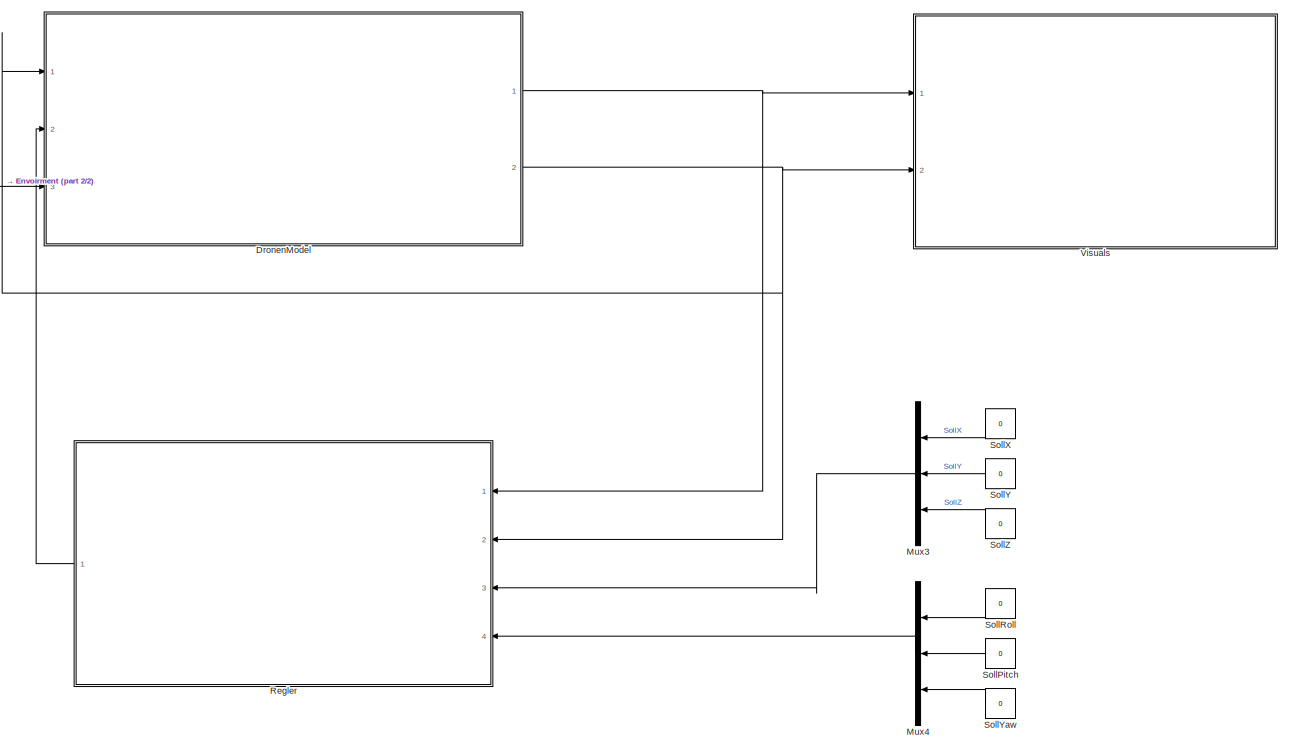
[diagram: root canvas - part 1/2, most of the canvas]
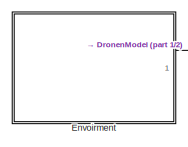
[diagram: root canvas - part 2/2, top left region]
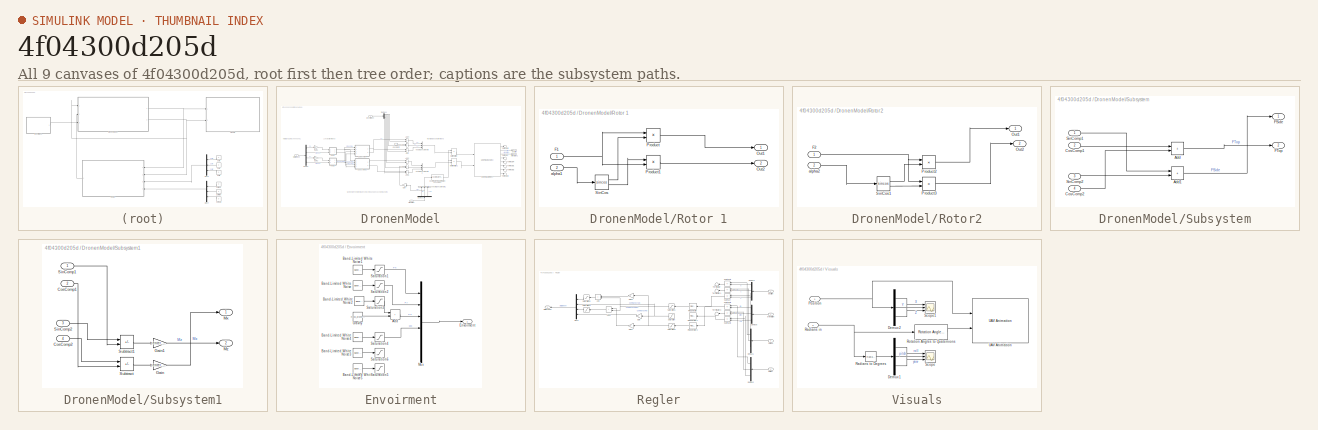
[diagram: thumbnail index - all 9 canvases of the model, root first then tree order]
MODEL slx_4f04300d205d
KIND model
CONFIG AbsTol = auto
CONFIG EnableMultiTasking = off
CONFIG FixedStep = auto
CONFIG MaxStep = auto
CONFIG MinStep = auto
CONFIG RelTol = 1e-3
CONFIG SampleTimeConstraint = Unconstrained
CONFIG SolverName = VariableStepAuto
CONFIG StartTime = 0.0
CONFIG StopTime = 60
WORKSPACE source: mxarray member
WORKSPACE center_rotor_distance = 0.1
WORKSPACE mass_drone = 0.661
WORKSPACE moment_inertia_drone = [0.0019 0 0.0001 0 0.004 0 0.0001 0 0.0021]
WORKSPACE thrust_per_motor = 8.6328
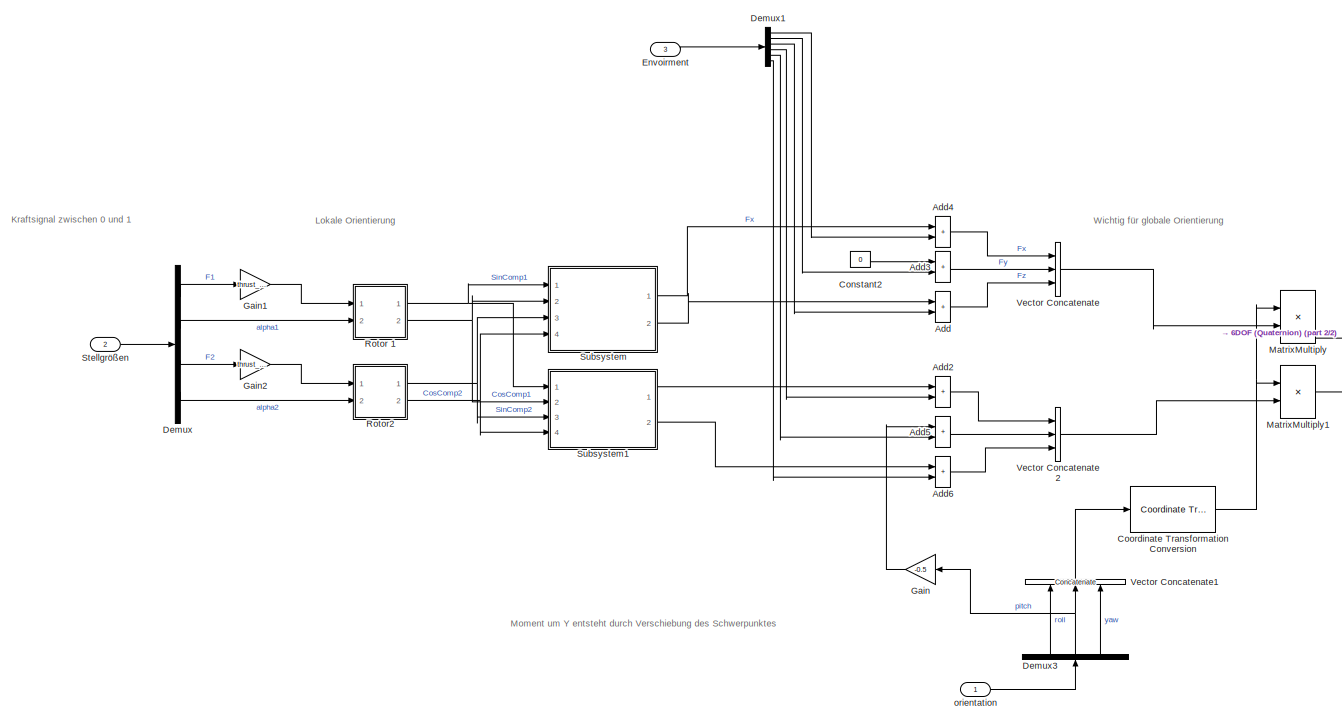
[diagram: DronenModel - part 1/2, most of the canvas]
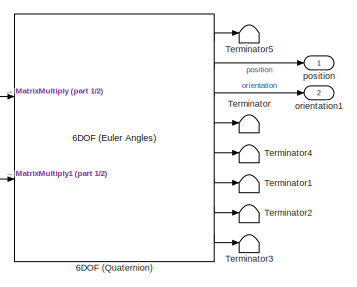
[diagram: DronenModel - part 2/2, middle right region]
BLOCK [SubSystem] DronenModel
  Ports = [3, 2]
  RequestExecContextInheritance = off
BLOCK [Reference] DronenModel/6DOF (Quaternion)  REF=shared6dof/6DOF (Euler Angles)
  Ports = [2, 8]
  SourceBlock = shared6dof/6DOF (Euler Angles)
  SourceProductBaseCode = AE,PW,MT,UV,VE,VP
  SourceType = 6DOF EoM (Body Axis)
BLOCK [Sum] DronenModel/Add
  IconShape = rectangular
  Ports = [2, 1]
BLOCK [Sum] DronenModel/Add2
  IconShape = rectangular
  Ports = [2, 1]
BLOCK [Sum] DronenModel/Add3
  IconShape = rectangular
  Ports = [2, 1]
BLOCK [Sum] DronenModel/Add4
  IconShape = rectangular
  Ports = [2, 1]
BLOCK [Sum] DronenModel/Add5
  IconShape = rectangular
  Ports = [2, 1]
BLOCK [Sum] DronenModel/Add6
  IconShape = rectangular
  Ports = [2, 1]
BLOCK [Constant] DronenModel/Constant2
  Value = 0
BLOCK [Reference] DronenModel/Coordinate Transformation Conversion  REF=robotcorelib/Coordinate Transformation Conversion
  Ports = [1, 1]
  SourceBlock = robotcorelib/Coordinate Transformation Conversion
  SourceProductBaseCode = NV,RO,RR,UV
  SourceType = robotics.slcore.internal.block.CoordinateTransformationConversion
BLOCK [Demux] DronenModel/Demux
  Ports = [1, 4]
BLOCK [Demux] DronenModel/Demux1
  Outputs = 6
  Ports = [1, 6]
BLOCK [Demux] DronenModel/Demux3
  NameLocation = right
  Outputs = 3
  Ports = [1, 3]
BLOCK [Inport] DronenModel/Envoirment
  Port = 3
BLOCK [Gain] DronenModel/Gain
  Gain = -0.5
BLOCK [Gain] DronenModel/Gain1
  Gain = thrust_per_motor
BLOCK [Gain] DronenModel/Gain2
  Gain = thrust_per_motor
BLOCK [Product] DronenModel/MatrixMultiply
  Multiplication = Matrix(*)
  Ports = [2, 1]
BLOCK [Product] DronenModel/MatrixMultiply1
  Multiplication = Matrix(*)
  Ports = [2, 1]
BLOCK [SubSystem] DronenModel/Rotor 1
  Ports = [2, 2]
  RequestExecContextInheritance = off
BLOCK [Inport] DronenModel/Rotor 1/F1
BLOCK [Outport] DronenModel/Rotor 1/Out1
BLOCK [Outport] DronenModel/Rotor 1/Out2
  Port = 2
BLOCK [Product] DronenModel/Rotor 1/Product
  Ports = [2, 1]
BLOCK [Product] DronenModel/Rotor 1/Product1
  Ports = [2, 1]
BLOCK [Trigonometry] DronenModel/Rotor 1/SinCos
  Operator = sincos
  Ports = [1, 2]
BLOCK [Inport] DronenModel/Rotor 1/alpha1
  Port = 2
BLOCK [SubSystem] DronenModel/Rotor2
  Ports = [2, 2]
  RequestExecContextInheritance = off
BLOCK [Inport] DronenModel/Rotor2/F2
BLOCK [Outport] DronenModel/Rotor2/Out1
BLOCK [Outport] DronenModel/Rotor2/Out2
  Port = 2
BLOCK [Product] DronenModel/Rotor2/Product2
  Ports = [2, 1]
BLOCK [Product] DronenModel/Rotor2/Product3
  Ports = [2, 1]
BLOCK [Trigonometry] DronenModel/Rotor2/SinCos1
  Operator = sincos
  Ports = [1, 2]
BLOCK [Inport] DronenModel/Rotor2/alpha2
  Port = 2
BLOCK [Inport] DronenModel/Stellgrößen
  Port = 2
BLOCK [SubSystem] DronenModel/Subsystem
  Ports = [4, 2]
  RequestExecContextInheritance = off
BLOCK [Sum] DronenModel/Subsystem/Add
  IconShape = rectangular
  Ports = [2, 1]
BLOCK [Sum] DronenModel/Subsystem/Add1
  IconShape = rectangular
  Ports = [2, 1]
BLOCK [Inport] DronenModel/Subsystem/CosComp1
  Port = 2
BLOCK [Inport] DronenModel/Subsystem/CosComp2
  Port = 4
BLOCK [Outport] DronenModel/Subsystem/FSide
BLOCK [Outport] DronenModel/Subsystem/FTop
  Port = 2
BLOCK [Inport] DronenModel/Subsystem/SinComp1
BLOCK [Inport] DronenModel/Subsystem/SinComp2
  Port = 3
BLOCK [SubSystem] DronenModel/Subsystem1
  Ports = [4, 2]
  RequestExecContextInheritance = off
BLOCK [Inport] DronenModel/Subsystem1/CosComp1
  Port = 2
BLOCK [Inport] DronenModel/Subsystem1/CosComp2
  Port = 4
BLOCK [Gain] DronenModel/Subsystem1/Gain
  Gain = center_rotor_distance
BLOCK [Gain] DronenModel/Subsystem1/Gain1
  Gain = center_rotor_distance
BLOCK [Outport] DronenModel/Subsystem1/Mx
BLOCK [Outport] DronenModel/Subsystem1/Mz
  Port = 2
BLOCK [Inport] DronenModel/Subsystem1/SinComp1
BLOCK [Inport] DronenModel/Subsystem1/SinComp2
  Port = 3
BLOCK [Sum] DronenModel/Subsystem1/Subtract
  IconShape = rectangular
  Inputs = +-
  Ports = [2, 1]
BLOCK [Sum] DronenModel/Subsystem1/Subtract1
  IconShape = rectangular
  Inputs = +-
  Ports = [2, 1]
BLOCK [Terminator] DronenModel/Terminator
BLOCK [Terminator] DronenModel/Terminator1
BLOCK [Terminator] DronenModel/Terminator2
BLOCK [Terminator] DronenModel/Terminator3
BLOCK [Terminator] DronenModel/Terminator4
BLOCK [Terminator] DronenModel/Terminator5
BLOCK [Concatenate] DronenModel/Vector Concatenate
  NumInputs = 3
  Ports = [3, 1]
BLOCK [Concatenate] DronenModel/Vector Concatenate1
  NameLocation = right
  NumInputs = 3
  Ports = [3, 1]
BLOCK [Concatenate] DronenModel/Vector Concatenate2
  NumInputs = 3
  Ports = [3, 1]
BLOCK [Inport] DronenModel/orientation
BLOCK [Outport] DronenModel/orientation1
  Port = 2
BLOCK [Outport] DronenModel/position
BLOCK [SubSystem] Envoirment
  Ports = [0, 1]
  RequestExecContextInheritance = off
BLOCK [Sum] Envoirment/Add
  IconShape = rectangular
  Ports = [2, 1]
BLOCK [Reference] Envoirment/Band-Limited White Noise  REF=simulink/Sources/Band-Limited
White Noise
  Ports = [0, 1]
  SourceBlock = simulink/Sources/Band-Limited\nWhite Noise
  SourceProductBaseCode = SL
  SourceType = Band-Limited White Noise.
BLOCK [Reference] Envoirment/Band-Limited White Noise1  REF=simulink/Sources/Band-Limited
White Noise
  Ports = [0, 1]
  SourceBlock = simulink/Sources/Band-Limited\nWhite Noise
  SourceProductBaseCode = SL
  SourceType = Band-Limited White Noise.
BLOCK [Reference] Envoirment/Band-Limited White Noise2  REF=simulink/Sources/Band-Limited
White Noise
  Ports = [0, 1]
  SourceBlock = simulink/Sources/Band-Limited\nWhite Noise
  SourceProductBaseCode = SL
  SourceType = Band-Limited White Noise.
BLOCK [Reference] Envoirment/Band-Limited White Noise3  REF=simulink/Sources/Band-Limited
White Noise
  Ports = [0, 1]
  SourceBlock = simulink/Sources/Band-Limited\nWhite Noise
  SourceProductBaseCode = SL
  SourceType = Band-Limited White Noise.
BLOCK [Reference] Envoirment/Band-Limited White Noise4  REF=simulink/Sources/Band-Limited
White Noise
  Ports = [0, 1]
  SourceBlock = simulink/Sources/Band-Limited\nWhite Noise
  SourceProductBaseCode = SL
  SourceType = Band-Limited White Noise.
BLOCK [Reference] Envoirment/Band-Limited White Noise5  REF=simulink/Sources/Band-Limited
White Noise
  Ports = [0, 1]
  SourceBlock = simulink/Sources/Band-Limited\nWhite Noise
  SourceProductBaseCode = SL
  SourceType = Band-Limited White Noise.
BLOCK [Outport] Envoirment/Envoirment
BLOCK [Constant] Envoirment/Gravity
  Value = mass_drone*-9.81
BLOCK [Mux] Envoirment/Mux
  DisplayOption = bar
  Inputs = 6
  Ports = [6, 1]
BLOCK [Saturate] Envoirment/Saturation1
  LowerLimit = -.1
  UpperLimit = 0.1
BLOCK [Saturate] Envoirment/Saturation2
  LowerLimit = -.1
  UpperLimit = 0.1
BLOCK [Saturate] Envoirment/Saturation3
  LowerLimit = -.1
  UpperLimit = 0.1
BLOCK [Saturate] Envoirment/Saturation4
  LowerLimit = -.0001
  UpperLimit = 0.001
BLOCK [Saturate] Envoirment/Saturation5
  LowerLimit = -.1
  UpperLimit = 0.1
BLOCK [Saturate] Envoirment/Saturation6
  LowerLimit = -.1
  UpperLimit = 0.1
BLOCK [Mux] Mux3
  DisplayOption = bar
  Inputs = 3
  Ports = [3, 1]
BLOCK [Mux] Mux4
  DisplayOption = bar
  Inputs = 3
  Ports = [3, 1]
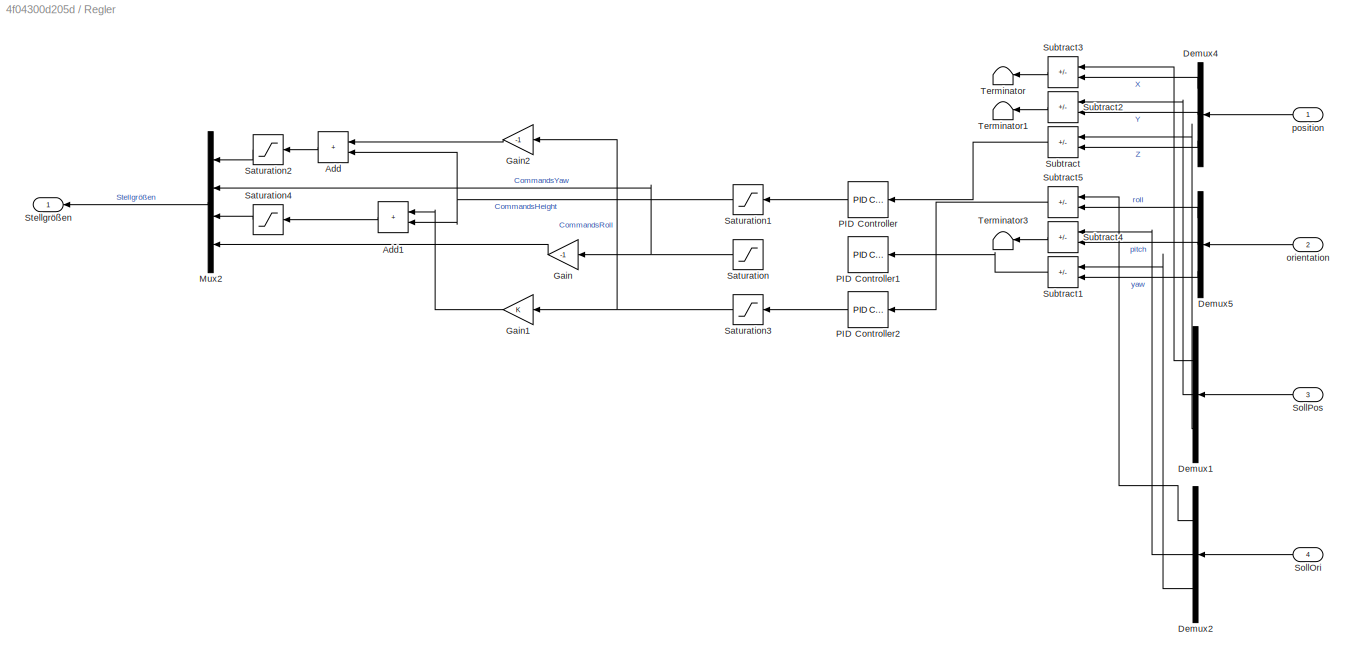
BLOCK [SubSystem] Regler
  Ports = [4, 1]
  RequestExecContextInheritance = off
BLOCK [Sum] Regler/Add
  IconShape = rectangular
  Ports = [2, 1]
BLOCK [Sum] Regler/Add1
  IconShape = rectangular
  Ports = [2, 1]
BLOCK [Demux] Regler/Demux1
  Outputs = 3
  Ports = [1, 3]
BLOCK [Demux] Regler/Demux2
  Outputs = 3
  Ports = [1, 3]
BLOCK [Demux] Regler/Demux4
  Outputs = 3
  Ports = [1, 3]
BLOCK [Demux] Regler/Demux5
  Outputs = 3
  Ports = [1, 3]
BLOCK [Gain] Regler/Gain
  Gain = -1
BLOCK [Gain] Regler/Gain1
BLOCK [Gain] Regler/Gain2
  Gain = -1
BLOCK [Mux] Regler/Mux2
  DisplayOption = bar
  Ports = [4, 1]
BLOCK [Reference] Regler/PID Controller  REF=pid_lib/PID Controller
  Ports = [1, 1]
  SourceBlock = pid_lib/PID Controller
  SourceProductBaseCode = SL
  SourceType = PID 1dof
BLOCK [Reference] Regler/PID Controller1  REF=pid_lib/PID Controller
  Ports = [1, 1]
  SourceBlock = pid_lib/PID Controller
  SourceProductBaseCode = SL
  SourceType = PID 1dof
BLOCK [Reference] Regler/PID Controller2  REF=pid_lib/PID Controller
  Ports = [1, 1]
  SourceBlock = pid_lib/PID Controller
  SourceProductBaseCode = SL
  SourceType = PID 1dof
BLOCK [Saturate] Regler/Saturation
  LowerLimit = -1
  UpperLimit = 1
BLOCK [Saturate] Regler/Saturation1
  LowerLimit = 0
  UpperLimit = 1
BLOCK [Saturate] Regler/Saturation2
  LowerLimit = 0
  UpperLimit = 1
BLOCK [Saturate] Regler/Saturation3
  LowerLimit = 0
BLOCK [Saturate] Regler/Saturation4
  LowerLimit = 0
  UpperLimit = 1
BLOCK [Inport] Regler/SollOri
  Port = 4
BLOCK [Inport] Regler/SollPos
  Port = 3
BLOCK [Outport] Regler/Stellgrößen
BLOCK [Sum] Regler/Subtract
  IconShape = rectangular
  Inputs = +-
  Ports = [2, 1]
BLOCK [Sum] Regler/Subtract1
  IconShape = rectangular
  Inputs = +-
  Ports = [2, 1]
BLOCK [Sum] Regler/Subtract2
  IconShape = rectangular
  Inputs = +-
  Ports = [2, 1]
BLOCK [Sum] Regler/Subtract3
  IconShape = rectangular
  Inputs = +-
  Ports = [2, 1]
BLOCK [Sum] Regler/Subtract4
  IconShape = rectangular
  Inputs = +-
  Ports = [2, 1]
BLOCK [Sum] Regler/Subtract5
  IconShape = rectangular
  Inputs = +-
  Ports = [2, 1]
BLOCK [Terminator] Regler/Terminator
BLOCK [Terminator] Regler/Terminator1
BLOCK [Terminator] Regler/Terminator3
BLOCK [Inport] Regler/orientation
  Port = 2
BLOCK [Inport] Regler/position
BLOCK [Constant] SollPitch
  Value = 0
BLOCK [Constant] SollRoll
  Value = 0
BLOCK [Constant] SollX
  Value = 0
BLOCK [Constant] SollY
  Value = 0
BLOCK [Constant] SollYaw
  Value = 0
BLOCK [Constant] SollZ
  Value = 0
BLOCK [SubSystem] Visuals
  Ports = [2]
  RequestExecContextInheritance = off
BLOCK [Demux] Visuals/Demux1
  Outputs = 3
  Ports = [1, 3]
BLOCK [Demux] Visuals/Demux2
  Outputs = 3
  Ports = [1, 3]
BLOCK [Inport] Visuals/Position
BLOCK [Inport] Visuals/Radians in
  Port = 2
BLOCK [Reference] Visuals/Radians to Degrees  REF=simulink_extras/Transformations/Radians
to Degrees
  Ports = [1, 1]
  SourceBlock = simulink_extras/Transformations/Radians\nto Degrees
  SourceProductBaseCode = SL
  SourceType = RadiansToDegrees
BLOCK [Reference] Visuals/Rotation Angles to Quaternions  REF=sharedtransform/Rotation Angles to Quaternions
  AttributesFormatString = Rotation Order: %<rotationOrder>
  Ports = [1, 1]
  SourceBlock = sharedtransform/Rotation Angles to Quaternions
  SourceProductBaseCode = AE,PW,MT,UV,VE,VP
  SourceType = Ang2Quat
BLOCK [Scope] Visuals/Scope
  Floating = off
  NumInputPorts = 3
  Ports = [3]
  ScopeSpecificationString = Simulink.scopes.TimeScopeBlockCfg('CurrentConfiguration', extmgr.ConfigurationSet(extmgr.Configuration('Core','General UI',true),extmgr.Configuration('Core','Source UI',true),extmgr.Configuration('Sources','WiredSimulink',true),extmgr.Configuration('Visuals','Time Domain',true,'SerializedDisplays',{struct('MinYLimReal','-225.00000','MaxYLimReal','225.00000','YLabelReal','','MinYLimMag',' 0.00000',...<+1398ch>
BLOCK [Scope] Visuals/Scope1
  Floating = off
  NumInputPorts = 3
  Ports = [3]
  ScopeSpecificationString = Simulink.scopes.TimeScopeBlockCfg('CurrentConfiguration', extmgr.ConfigurationSet(extmgr.Configuration('Core','General UI',true),extmgr.Configuration('Core','Source UI',true),extmgr.Configuration('Sources','WiredSimulink',true,'DataLoggingVariableName','ScopeData1'),extmgr.Configuration('Visuals','Time Domain',true,'SerializedDisplays',{struct('MinYLimReal','-78.13499','MaxYLimReal','11.77607','YL...<+1428ch>
BLOCK [Reference] Visuals/UAV Animation  REF=uavutilslib/UAV Animation
  Ports = [2]
  SourceBlock = uavutilslib/UAV Animation
  SourceProductBaseCode = UV
  SourceType = uav.sluav.internal.system.UAVAnimation
ANNOTATION DronenModel: Moment um Y entsteht durch Verschiebung des Schwerpunktes
ANNOTATION DronenModel: Kraftsignal zwischen 0 und 1
ANNOTATION DronenModel: Lokale Orientierung
ANNOTATION DronenModel: Wichtig für globale Orientierung
LINE DronenModel/6DOF (Quaternion):1 -> DronenModel/Terminator5:1
LINE DronenModel/6DOF (Quaternion):2 -> DronenModel/position:1
LINE DronenModel/6DOF (Quaternion):3 -> DronenModel/orientation1:1
LINE DronenModel/6DOF (Quaternion):4 -> DronenModel/Terminator:1
LINE DronenModel/6DOF (Quaternion):5 -> DronenModel/Terminator4:1
LINE DronenModel/6DOF (Quaternion):6 -> DronenModel/Terminator1:1
LINE DronenModel/6DOF (Quaternion):7 -> DronenModel/Terminator2:1
LINE DronenModel/6DOF (Quaternion):8 -> DronenModel/Terminator3:1
LINE DronenModel/Add2:1 -> DronenModel/Vector Concatenate2:1
LINE DronenModel/Add3:1 -> DronenModel/Vector Concatenate:2
LINE DronenModel/Add4:1 -> DronenModel/Vector Concatenate:1
LINE DronenModel/Add5:1 -> DronenModel/Vector Concatenate2:2
LINE DronenModel/Add6:1 -> DronenModel/Vector Concatenate2:3
LINE DronenModel/Add:1 -> DronenModel/Vector Concatenate:3
LINE DronenModel/Constant2:1 -> DronenModel/Add3:1
NET DronenModel/Coordinate Transformation Conversion:1 -> DronenModel/MatrixMultiply1:1, DronenModel/MatrixMultiply:1
LINE DronenModel/Demux1:1 -> DronenModel/Add4:2
LINE DronenModel/Demux1:2 -> DronenModel/Add3:2
LINE DronenModel/Demux1:3 -> DronenModel/Add:2
LINE DronenModel/Demux1:4 -> DronenModel/Add2:2
LINE DronenModel/Demux1:5 -> DronenModel/Add5:2
LINE DronenModel/Demux1:6 -> DronenModel/Add6:2
LINE DronenModel/Demux3:1 -> DronenModel/Vector Concatenate1:1
NET DronenModel/Demux3:2 -> DronenModel/Gain:1, DronenModel/Vector Concatenate1:2
LINE DronenModel/Demux3:3 -> DronenModel/Vector Concatenate1:3
LINE DronenModel/Demux:1 -> DronenModel/Gain1:1
LINE DronenModel/Demux:2 -> DronenModel/Rotor 1:2
LINE DronenModel/Demux:3 -> DronenModel/Gain2:1
LINE DronenModel/Demux:4 -> DronenModel/Rotor2:2
LINE DronenModel/Envoirment:1 -> DronenModel/Demux1:1
LINE DronenModel/Gain1:1 -> DronenModel/Rotor 1:1
LINE DronenModel/Gain2:1 -> DronenModel/Rotor2:1
LINE DronenModel/Gain:1 -> DronenModel/Add5:1
LINE DronenModel/MatrixMultiply1:1 -> DronenModel/6DOF (Quaternion):2
LINE DronenModel/MatrixMultiply:1 -> DronenModel/6DOF (Quaternion):1
NET DronenModel/Rotor 1/F1:1 -> DronenModel/Rotor 1/Product1:2, DronenModel/Rotor 1/Product:1
LINE DronenModel/Rotor 1/Product1:1 -> DronenModel/Rotor 1/Out2:1
LINE DronenModel/Rotor 1/Product:1 -> DronenModel/Rotor 1/Out1:1
LINE DronenModel/Rotor 1/SinCos:1 -> DronenModel/Rotor 1/Product:2
LINE DronenModel/Rotor 1/SinCos:2 -> DronenModel/Rotor 1/Product1:1
LINE DronenModel/Rotor 1/alpha1:1 -> DronenModel/Rotor 1/SinCos:1
NET DronenModel/Rotor 1:1 -> DronenModel/Subsystem1:1, DronenModel/Subsystem:1
NET DronenModel/Rotor 1:2 -> DronenModel/Subsystem1:2, DronenModel/Subsystem:2
NET DronenModel/Rotor2/F2:1 -> DronenModel/Rotor2/Product2:1, DronenModel/Rotor2/Product3:1
LINE DronenModel/Rotor2/Product2:1 -> DronenModel/Rotor2/Out1:1
LINE DronenModel/Rotor2/Product3:1 -> DronenModel/Rotor2/Out2:1
LINE DronenModel/Rotor2/SinCos1:1 -> DronenModel/Rotor2/Product2:2
LINE DronenModel/Rotor2/SinCos1:2 -> DronenModel/Rotor2/Product3:2
LINE DronenModel/Rotor2/alpha2:1 -> DronenModel/Rotor2/SinCos1:1
NET DronenModel/Rotor2:1 -> DronenModel/Subsystem1:3, DronenModel/Subsystem:3
NET DronenModel/Rotor2:2 -> DronenModel/Subsystem1:4, DronenModel/Subsystem:4
LINE DronenModel/Stellgrößen:1 -> DronenModel/Demux:1
LINE DronenModel/Subsystem/Add1:1 -> DronenModel/Subsystem/FSide:1
LINE DronenModel/Subsystem/Add:1 -> DronenModel/Subsystem/FTop:1
LINE DronenModel/Subsystem/CosComp1:1 -> DronenModel/Subsystem/Add:1
LINE DronenModel/Subsystem/CosComp2:1 -> DronenModel/Subsystem/Add:2
LINE DronenModel/Subsystem/SinComp1:1 -> DronenModel/Subsystem/Add1:1
LINE DronenModel/Subsystem/SinComp2:1 -> DronenModel/Subsystem/Add1:2
LINE DronenModel/Subsystem1/CosComp1:1 -> DronenModel/Subsystem1/Subtract:2
LINE DronenModel/Subsystem1/CosComp2:1 -> DronenModel/Subsystem1/Subtract:1
LINE DronenModel/Subsystem1/Gain1:1 -> DronenModel/Subsystem1/Mz:1
LINE DronenModel/Subsystem1/Gain:1 -> DronenModel/Subsystem1/Mx:1
LINE DronenModel/Subsystem1/SinComp1:1 -> DronenModel/Subsystem1/Subtract1:2
LINE DronenModel/Subsystem1/SinComp2:1 -> DronenModel/Subsystem1/Subtract1:1
LINE DronenModel/Subsystem1/Subtract1:1 -> DronenModel/Subsystem1/Gain1:1
LINE DronenModel/Subsystem1/Subtract:1 -> DronenModel/Subsystem1/Gain:1
LINE DronenModel/Subsystem1:1 -> DronenModel/Add2:1
LINE DronenModel/Subsystem1:2 -> DronenModel/Add6:1
LINE DronenModel/Subsystem:1 -> DronenModel/Add4:1
LINE DronenModel/Subsystem:2 -> DronenModel/Add:1
LINE DronenModel/Vector Concatenate1:1 -> DronenModel/Coordinate Transformation Conversion:1
LINE DronenModel/Vector Concatenate2:1 -> DronenModel/MatrixMultiply1:2
LINE DronenModel/Vector Concatenate:1 -> DronenModel/MatrixMultiply:2
LINE DronenModel/orientation:1 -> DronenModel/Demux3:1
NET DronenModel:1 -> Regler:1, Visuals:1
NET DronenModel:2 -> DronenModel:1, Regler:2, Visuals:2
LINE Envoirment/Add:1 -> Envoirment/Mux:3
LINE Envoirment/Band-Limited White Noise1:1 -> Envoirment/Saturation1:1
LINE Envoirment/Band-Limited White Noise2:1 -> Envoirment/Saturation3:1
LINE Envoirment/Band-Limited White Noise3:1 -> Envoirment/Saturation6:1
LINE Envoirment/Band-Limited White Noise4:1 -> Envoirment/Saturation4:1
LINE Envoirment/Band-Limited White Noise5:1 -> Envoirment/Saturation5:1
LINE Envoirment/Band-Limited White Noise:1 -> Envoirment/Saturation2:1
LINE Envoirment/Gravity:1 -> Envoirment/Add:2
LINE Envoirment/Mux:1 -> Envoirment/Envoirment:1
LINE Envoirment/Saturation1:1 -> Envoirment/Mux:1
LINE Envoirment/Saturation2:1 -> Envoirment/Mux:2
LINE Envoirment/Saturation3:1 -> Envoirment/Add:1
LINE Envoirment/Saturation4:1 -> Envoirment/Mux:4
LINE Envoirment:1 -> DronenModel:3
LINE Mux3:1 -> Regler:3
LINE Mux4:1 -> Regler:4
LINE Regler/Add1:1 -> Regler/Saturation4:1
LINE Regler/Add:1 -> Regler/Saturation2:1
LINE Regler/Demux1:1 -> Regler/Subtract3:1
LINE Regler/Demux1:2 -> Regler/Subtract2:1
LINE Regler/Demux1:3 -> Regler/Subtract:1
LINE Regler/Demux2:1 -> Regler/Subtract5:1
LINE Regler/Demux2:2 -> Regler/Subtract4:1
LINE Regler/Demux2:3 -> Regler/Subtract1:1
LINE Regler/Demux4:1 -> Regler/Subtract3:2
LINE Regler/Demux4:2 -> Regler/Subtract2:2
LINE Regler/Demux4:3 -> Regler/Subtract:2
LINE Regler/Demux5:1 -> Regler/Subtract5:2
LINE Regler/Demux5:2 -> Regler/Subtract4:2
LINE Regler/Demux5:3 -> Regler/Subtract1:2
LINE Regler/Gain1:1 -> Regler/Add1:1
LINE Regler/Gain2:1 -> Regler/Add:1
LINE Regler/Gain:1 -> Regler/Mux2:4
LINE Regler/Mux2:1 -> Regler/Stellgrößen:1
LINE Regler/PID Controller2:1 -> Regler/Saturation3:1
LINE Regler/PID Controller:1 -> Regler/Saturation1:1
NET Regler/Saturation1:1 -> Regler/Add1:2, Regler/Add:2
LINE Regler/Saturation2:1 -> Regler/Mux2:1
NET Regler/Saturation3:1 -> Regler/Gain1:1, Regler/Gain2:1
LINE Regler/Saturation4:1 -> Regler/Mux2:3
NET Regler/Saturation:1 -> Regler/Gain:1, Regler/Mux2:2
LINE Regler/SollOri:1 -> Regler/Demux2:1
LINE Regler/SollPos:1 -> Regler/Demux1:1
LINE Regler/Subtract1:1 -> Regler/PID Controller1:1
LINE Regler/Subtract2:1 -> Regler/Terminator1:1
LINE Regler/Subtract3:1 -> Regler/Terminator:1
LINE Regler/Subtract4:1 -> Regler/Terminator3:1
LINE Regler/Subtract5:1 -> Regler/PID Controller2:1
LINE Regler/Subtract:1 -> Regler/PID Controller:1
LINE Regler/orientation:1 -> Regler/Demux5:1
LINE Regler/position:1 -> Regler/Demux4:1
LINE Regler:1 -> DronenModel:2
LINE SollPitch:1 -> Mux4:2
LINE SollRoll:1 -> Mux4:1
LINE SollX:1 -> Mux3:1
LINE SollY:1 -> Mux3:2
LINE SollYaw:1 -> Mux4:3
LINE SollZ:1 -> Mux3:3
LINE Visuals/Demux1:1 -> Visuals/Scope:1
LINE Visuals/Demux1:2 -> Visuals/Scope:2
LINE Visuals/Demux1:3 -> Visuals/Scope:3
LINE Visuals/Demux2:1 -> Visuals/Scope1:1
LINE Visuals/Demux2:2 -> Visuals/Scope1:2
LINE Visuals/Demux2:3 -> Visuals/Scope1:3
NET Visuals/Position:1 -> Visuals/Demux2:1, Visuals/UAV Animation:1
NET Visuals/Radians in:1 -> Visuals/Radians to Degrees:1, Visuals/Rotation Angles to Quaternions:1
LINE Visuals/Radians to Degrees:1 -> Visuals/Demux1:1
LINE Visuals/Rotation Angles to Quaternions:1 -> Visuals/UAV Animation:2
note: NET lines group one-source signal fan-out (src -> all destinations, sorted); 1:1 wires keep LINE
